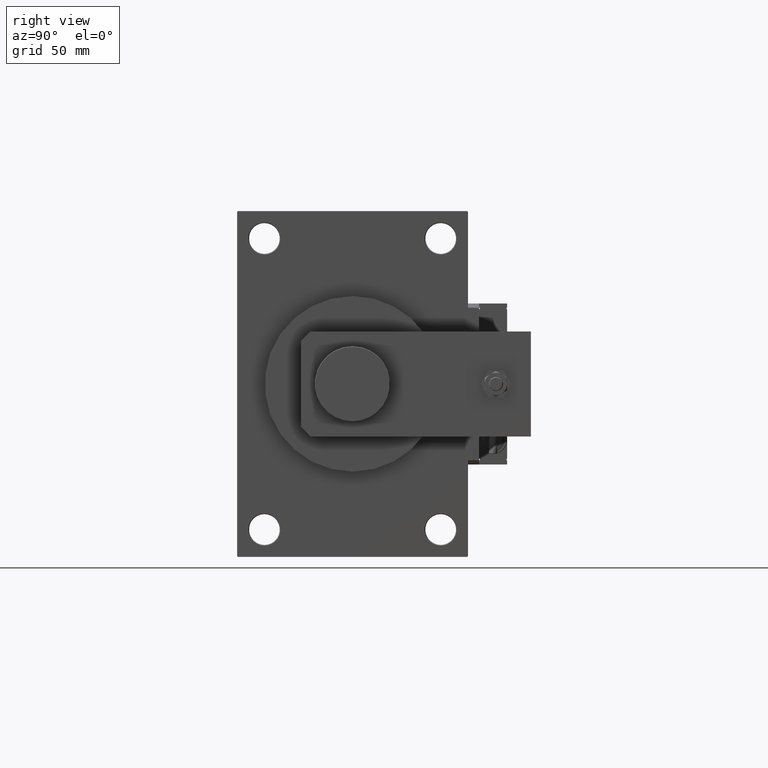
[diagram: clean part render]
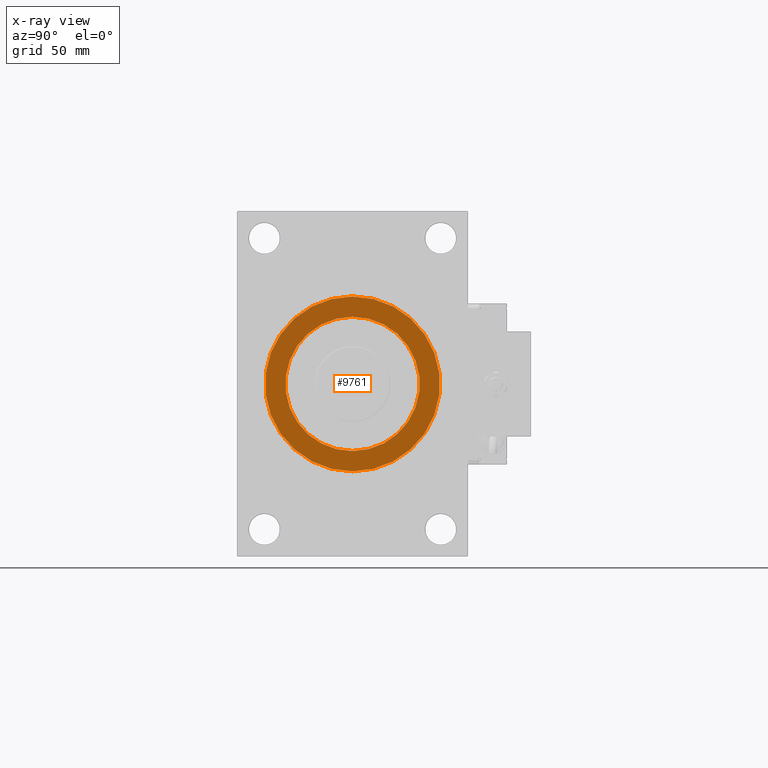
[diagram: x-ray — body ghosted, one internal face saturated and labeled with its STEP entity id]
A machine part, right view, then the same camera in x-ray: the body is ghosted and one INTERNAL B-rep face — a face not visible from any outside direction — is saturated and labeled: STEP entity #9761.
In plain terms, the highlighted planar face has unit normal (-1, 0, 0).
Its self-contained STEP definition (entity closure, byte-faithful):
#451 = CARTESIAN_POINT ( 'NONE',  ( 219.0000000000000000, 5.051957280705747162E-15, -62.50000000000000000 ) ) ;
#1685 = CIRCLE ( 'NONE', #32096, 48.00000000000000711 ) ;
#1750 = CARTESIAN_POINT ( 'NONE',  ( 219.0000000000000000, -2.602085213965210642E-15, 62.50000000000000000 ) ) ;
#2217 = EDGE_LOOP ( 'NONE', ( #19620, #22184 ) ) ;
#5905 = DIRECTION ( 'NONE',  ( 1.000000000000000000, 0.000000000000000000, 0.000000000000000000 ) ) ;
#6308 = CARTESIAN_POINT ( 'NONE',  ( 219.0000000000000000, -2.602085213965210642E-15, 0.000000000000000000 ) ) ;
#6443 = DIRECTION ( 'NONE',  ( 0.000000000000000000, 0.000000000000000000, -1.000000000000000000 ) ) ;
#7087 = CARTESIAN_POINT ( 'NONE',  ( 219.0000000000000284, 5.878304635907296578E-15, 48.00000000000000711 ) ) ;
#9475 = VERTEX_POINT ( 'NONE', #7087 ) ;
#9761 = ADVANCED_FACE ( 'NONE', ( #24171, #15192 ), #31788, .T. ) ;
#10262 = CARTESIAN_POINT ( 'NONE',  ( 219.0000000000000000, -2.602085213965210642E-15, 0.000000000000000000 ) ) ;
#12187 = DIRECTION ( 'NONE',  ( -0.000000000000000000, 0.000000000000000000, 1.000000000000000000 ) ) ;
#15192 = FACE_OUTER_BOUND ( 'NONE', #32915, .T. ) ;
#15205 = CIRCLE ( 'NONE', #35216, 62.50000000000000000 ) ;
#16837 = CARTESIAN_POINT ( 'NONE',  ( 219.0000000000000284, 0.000000000000000000, -48.00000000000000711 ) ) ;
#16923 = ORIENTED_EDGE ( 'NONE', *, *, #21938, .F. ) ;
#18721 = AXIS2_PLACEMENT_3D ( 'NONE', #46773, #29897, #46510 ) ;
#19620 = ORIENTED_EDGE ( 'NONE', *, *, #44033, .F. ) ;
#20862 = DIRECTION ( 'NONE',  ( 0.000000000000000000, 0.000000000000000000, 1.000000000000000000 ) ) ;
#21653 = ORIENTED_EDGE ( 'NONE', *, *, #40518, .F. ) ;
#21670 = VERTEX_POINT ( 'NONE', #451 ) ;
#21938 = EDGE_CURVE ( 'NONE', #21670, #23181, #51216, .T. ) ;
#22184 = ORIENTED_EDGE ( 'NONE', *, *, #37215, .F. ) ;
#23181 = VERTEX_POINT ( 'NONE', #1750 ) ;
#24171 = FACE_BOUND ( 'NONE', #2217, .T. ) ;
#24914 = VERTEX_POINT ( 'NONE', #16837 ) ;
#27001 = DIRECTION ( 'NONE',  ( 0.000000000000000000, 0.000000000000000000, -1.000000000000000000 ) ) ;
#27731 = AXIS2_PLACEMENT_3D ( 'NONE', #6308, #46880, #27001 ) ;
#29897 = DIRECTION ( 'NONE',  ( -1.000000000000000000, 0.000000000000000000, -0.000000000000000000 ) ) ;
#31788 = PLANE ( 'NONE',  #46863 ) ;
#32096 = AXIS2_PLACEMENT_3D ( 'NONE', #45903, #37982, #20862 ) ;
#32334 = DIRECTION ( 'NONE',  ( -1.000000000000000000, 0.000000000000000000, -0.000000000000000000 ) ) ;
#32915 = EDGE_LOOP ( 'NONE', ( #21653, #16923 ) ) ;
#35216 = AXIS2_PLACEMENT_3D ( 'NONE', #10262, #5905, #6443 ) ;
#37215 = EDGE_CURVE ( 'NONE', #9475, #24914, #49990, .T. ) ;
#37982 = DIRECTION ( 'NONE',  ( -1.000000000000000000, 0.000000000000000000, -0.000000000000000000 ) ) ;
#40518 = EDGE_CURVE ( 'NONE', #23181, #21670, #15205, .T. ) ;
#44033 = EDGE_CURVE ( 'NONE', #24914, #9475, #1685, .T. ) ;
#45903 = CARTESIAN_POINT ( 'NONE',  ( 219.0000000000000284, 0.000000000000000000, 0.000000000000000000 ) ) ;
#46510 = DIRECTION ( 'NONE',  ( 0.000000000000000000, 0.000000000000000000, 1.000000000000000000 ) ) ;
#46773 = CARTESIAN_POINT ( 'NONE',  ( 219.0000000000000284, 0.000000000000000000, 0.000000000000000000 ) ) ;
#46863 = AXIS2_PLACEMENT_3D ( 'NONE', #48394, #32334, #12187 ) ;
#46880 = DIRECTION ( 'NONE',  ( 1.000000000000000000, 0.000000000000000000, 0.000000000000000000 ) ) ;
#48394 = CARTESIAN_POINT ( 'NONE',  ( 219.0000000000000000, 0.000000000000000000, 0.000000000000000000 ) ) ;
#49990 = CIRCLE ( 'NONE', #18721, 48.00000000000000711 ) ;
#51216 = CIRCLE ( 'NONE', #27731, 62.50000000000000000 ) ;